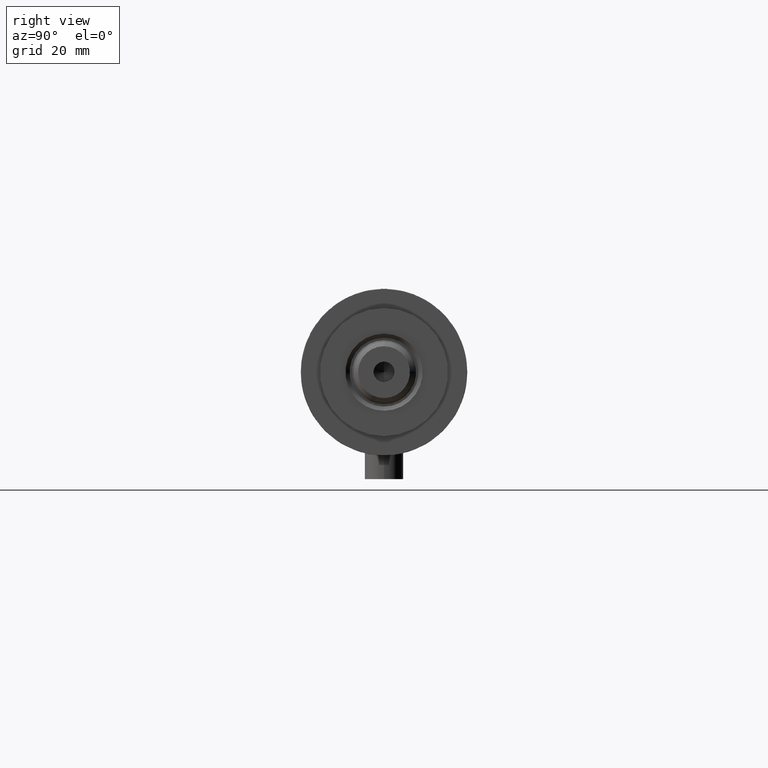
[diagram: clean part render]
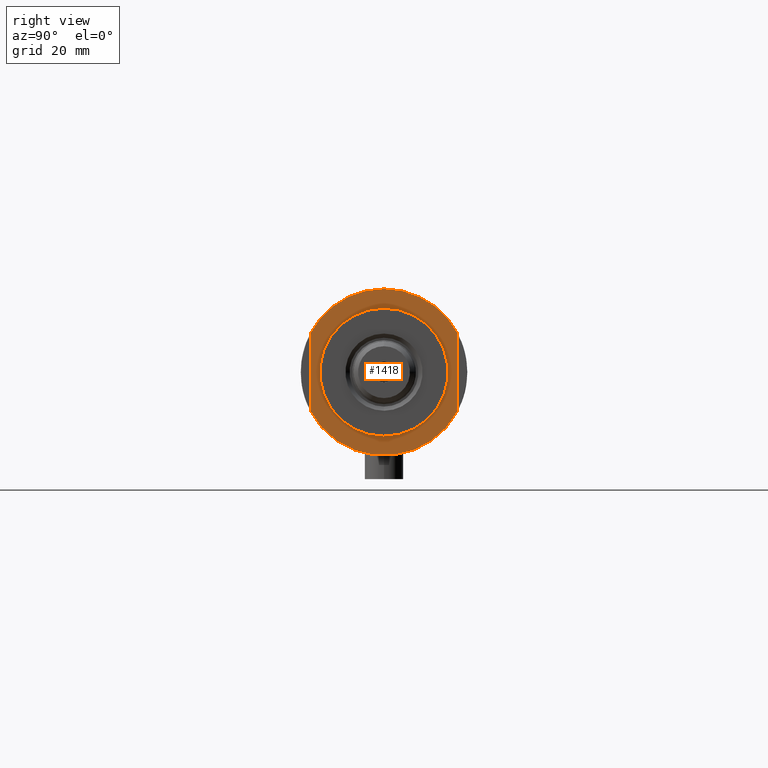
[diagram: same view with one face highlighted and labeled with its STEP entity id]
A machine part, right view. The second image highlights one B-rep face of the part: STEP entity #1418.
In plain terms, the highlighted planar face has unit normal (1, 0, -0).
Its self-contained STEP definition (entity closure, byte-faithful):
#31 = CARTESIAN_POINT ( 'NONE',  ( 12.12435565298214790, 23.00000000000000355, 15.50000000000000000 ) ) ;
#58 = DIRECTION ( 'NONE',  ( -0.000000000000000000, -0.000000000000000000, -1.000000000000000000 ) ) ;
#86 = EDGE_CURVE ( 'NONE', #728, #4633, #3997, .T. ) ;
#231 = PLANE ( 'NONE',  #3323 ) ;
#415 = CIRCLE ( 'NONE', #3094, 26.00000000000000355 ) ;
#435 = EDGE_CURVE ( 'NONE', #1772, #529, #4556, .T. ) ;
#512 = VECTOR ( 'NONE', #1051, 1000.000000000000000 ) ;
#529 = VERTEX_POINT ( 'NONE', #31 ) ;
#597 = ORIENTED_EDGE ( 'NONE', *, *, #86, .T. ) ;
#604 = FACE_BOUND ( 'NONE', #4519, .T. ) ;
#660 = DIRECTION ( 'NONE',  ( 0.000000000000000000, 0.000000000000000000, 1.000000000000000000 ) ) ;
#728 = VERTEX_POINT ( 'NONE', #2907 ) ;
#759 = DIRECTION ( 'NONE',  ( 1.000000000000000000, 0.000000000000000000, 0.000000000000000000 ) ) ;
#815 = CARTESIAN_POINT ( 'NONE',  ( -12.12435565298215145, -22.99999999999999645, 15.50000000000000000 ) ) ;
#933 = ORIENTED_EDGE ( 'NONE', *, *, #2069, .T. ) ;
#1051 = DIRECTION ( 'NONE',  ( 1.000000000000000000, 0.000000000000000000, 0.000000000000000000 ) ) ;
#1054 = ORIENTED_EDGE ( 'NONE', *, *, #3782, .T. ) ;
#1108 = DIRECTION ( 'NONE',  ( 0.000000000000000000, 0.000000000000000000, 1.000000000000000000 ) ) ;
#1307 = DIRECTION ( 'NONE',  ( -0.000000000000000000, -0.000000000000000000, -1.000000000000000000 ) ) ;
#1358 = ORIENTED_EDGE ( 'NONE', *, *, #435, .T. ) ;
#1385 = CARTESIAN_POINT ( 'NONE',  ( 20.00000000000000000, 0.000000000000000000, 15.50000000000000000 ) ) ;
#1418 = ADVANCED_FACE ( 'NONE', ( #604, #3579 ), #231, .T. ) ;
#1488 = CARTESIAN_POINT ( 'NONE',  ( -12.12435565298215145, 23.00000000000000355, 15.50000000000000000 ) ) ;
#1508 = AXIS2_PLACEMENT_3D ( 'NONE', #2589, #660, #4776 ) ;
#1546 = CARTESIAN_POINT ( 'NONE',  ( 0.000000000000000000, 0.000000000000000000, 15.50000000000000000 ) ) ;
#1629 = VERTEX_POINT ( 'NONE', #3096 ) ;
#1724 = DIRECTION ( 'NONE',  ( 0.000000000000000000, 0.000000000000000000, 1.000000000000000000 ) ) ;
#1771 = ORIENTED_EDGE ( 'NONE', *, *, #3082, .T. ) ;
#1772 = VERTEX_POINT ( 'NONE', #2940 ) ;
#1871 = DIRECTION ( 'NONE',  ( -1.000000000000000000, -0.000000000000000000, -0.000000000000000000 ) ) ;
#1970 = DIRECTION ( 'NONE',  ( 0.000000000000000000, 0.000000000000000000, 1.000000000000000000 ) ) ;
#2069 = EDGE_CURVE ( 'NONE', #2309, #1629, #3627, .T. ) ;
#2124 = EDGE_CURVE ( 'NONE', #1772, #2854, #4186, .T. ) ;
#2149 = AXIS2_PLACEMENT_3D ( 'NONE', #1546, #58, #2669 ) ;
#2193 = CARTESIAN_POINT ( 'NONE',  ( -12.12435565298215323, -22.99999999999999645, 15.50000000000000000 ) ) ;
#2203 = CARTESIAN_POINT ( 'NONE',  ( 0.000000000000000000, 0.000000000000000000, 15.50000000000000000 ) ) ;
#2309 = VERTEX_POINT ( 'NONE', #4167 ) ;
#2405 = EDGE_CURVE ( 'NONE', #2309, #529, #3981, .T. ) ;
#2589 = CARTESIAN_POINT ( 'NONE',  ( 0.000000000000000000, 0.000000000000000000, 15.50000000000000000 ) ) ;
#2618 = ORIENTED_EDGE ( 'NONE', *, *, #2124, .F. ) ;
#2641 = CIRCLE ( 'NONE', #3246, 20.00000000000000000 ) ;
#2669 = DIRECTION ( 'NONE',  ( 1.000000000000000000, 0.000000000000000000, 0.000000000000000000 ) ) ;
#2815 = CARTESIAN_POINT ( 'NONE',  ( 0.000000000000000000, 0.000000000000000000, 15.50000000000000000 ) ) ;
#2854 = VERTEX_POINT ( 'NONE', #2193 ) ;
#2907 = CARTESIAN_POINT ( 'NONE',  ( -20.00000000000000000, 2.449293598294706513E-15, 15.50000000000000000 ) ) ;
#2940 = CARTESIAN_POINT ( 'NONE',  ( 12.12435565298215323, -22.99999999999999645, 15.50000000000000000 ) ) ;
#3082 = EDGE_CURVE ( 'NONE', #1629, #2854, #415, .T. ) ;
#3094 = AXIS2_PLACEMENT_3D ( 'NONE', #3815, #1970, #3195 ) ;
#3096 = CARTESIAN_POINT ( 'NONE',  ( -26.00000000000000355, 0.000000000000000000, 15.50000000000000000 ) ) ;
#3195 = DIRECTION ( 'NONE',  ( 1.000000000000000000, 0.000000000000000000, 0.000000000000000000 ) ) ;
#3246 = AXIS2_PLACEMENT_3D ( 'NONE', #2815, #1307, #3895 ) ;
#3321 = EDGE_LOOP ( 'NONE', ( #2618, #1358, #3600, #933, #1771 ) ) ;
#3323 = AXIS2_PLACEMENT_3D ( 'NONE', #2203, #1724, #4709 ) ;
#3346 = CARTESIAN_POINT ( 'NONE',  ( 0.000000000000000000, 0.000000000000000000, 15.50000000000000000 ) ) ;
#3579 = FACE_OUTER_BOUND ( 'NONE', #3321, .T. ) ;
#3600 = ORIENTED_EDGE ( 'NONE', *, *, #2405, .F. ) ;
#3627 = CIRCLE ( 'NONE', #4495, 26.00000000000000355 ) ;
#3782 = EDGE_CURVE ( 'NONE', #4633, #728, #2641, .T. ) ;
#3815 = CARTESIAN_POINT ( 'NONE',  ( 0.000000000000000000, 0.000000000000000000, 15.50000000000000000 ) ) ;
#3895 = DIRECTION ( 'NONE',  ( 1.000000000000000000, 0.000000000000000000, 0.000000000000000000 ) ) ;
#3981 = LINE ( 'NONE', #1488, #512 ) ;
#3997 = CIRCLE ( 'NONE', #2149, 20.00000000000000000 ) ;
#4167 = CARTESIAN_POINT ( 'NONE',  ( -12.12435565298214613, 23.00000000000000355, 15.50000000000000000 ) ) ;
#4186 = LINE ( 'NONE', #815, #4730 ) ;
#4495 = AXIS2_PLACEMENT_3D ( 'NONE', #3346, #1108, #759 ) ;
#4519 = EDGE_LOOP ( 'NONE', ( #1054, #597 ) ) ;
#4556 = CIRCLE ( 'NONE', #1508, 26.00000000000000355 ) ;
#4633 = VERTEX_POINT ( 'NONE', #1385 ) ;
#4709 = DIRECTION ( 'NONE',  ( 1.000000000000000000, 0.000000000000000000, -0.000000000000000000 ) ) ;
#4730 = VECTOR ( 'NONE', #1871, 1000.000000000000000 ) ;
#4776 = DIRECTION ( 'NONE',  ( 1.000000000000000000, 0.000000000000000000, 0.000000000000000000 ) ) ;